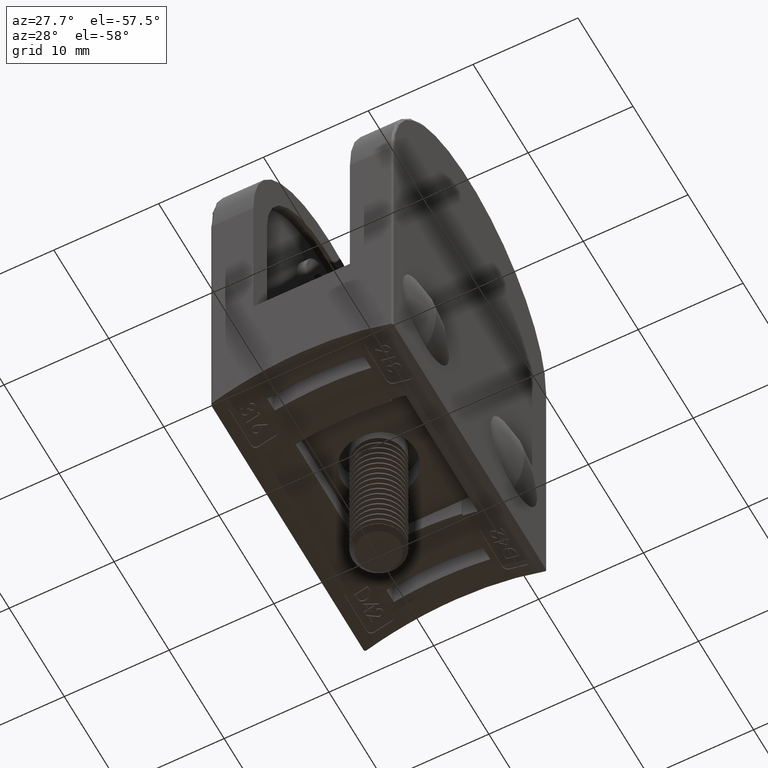
[diagram: clean part render]
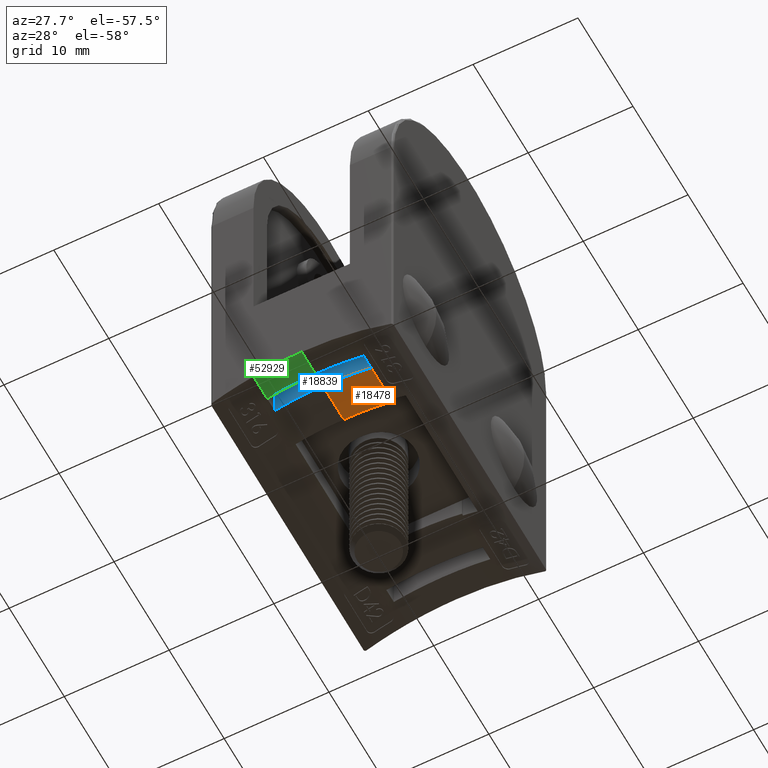
[diagram: same view with three faces highlighted in distinct colors, each labeled with its STEP entity id]
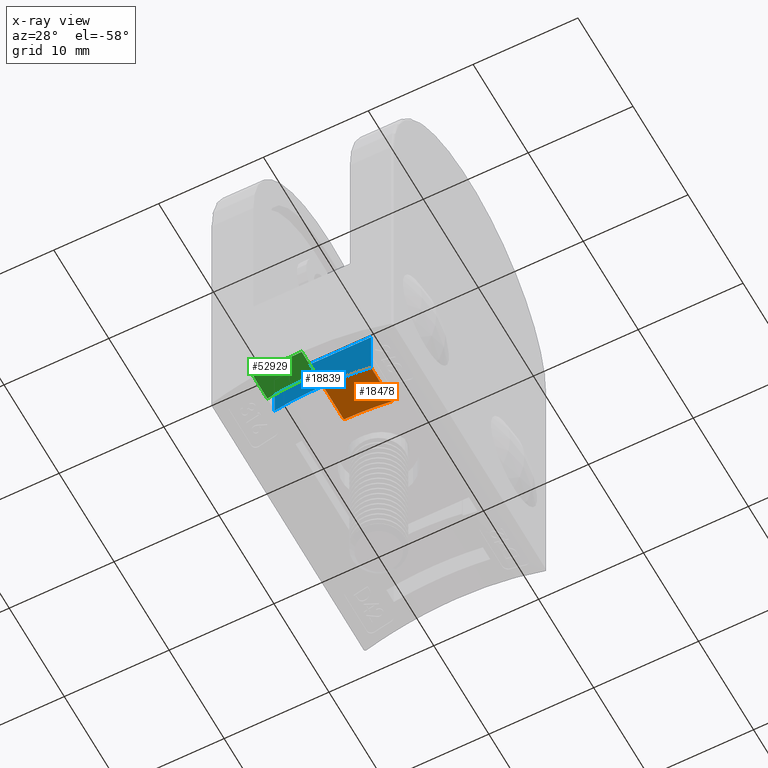
[diagram: x-ray of the same camera — body ghosted, the three highlighted faces saturated]
A machine part, auxiliary view with three faces highlighted in distinct colors.
The next image is the same camera in x-ray (body ghosted, the three faces saturated) — at least one of them is partly hidden behind the body in this view.
Their STEP definitions:

[orange] entity #18478 — the highlighted cylindrical surface (partial cylindrical patch) has radius 21.2 mm, axis along (0, 1, 0).
#1045 = ORIENTED_EDGE ( 'NONE', *, *, #5738, .T. ) ;
#1162 = CARTESIAN_POINT ( 'NONE',  ( 13.29999999999999900, -10.14999999999999900, -0.5050730854153535600 ) ) ;
#1467 = AXIS2_PLACEMENT_3D ( 'NONE', #18885, #40877, #49620 ) ;
#2028 = DIRECTION ( 'NONE',  ( 0.0000000000000000000, 0.0000000000000000000, 1.000000000000000000 ) ) ;
#2416 = DIRECTION ( 'NONE',  ( -0.0000000000000000000, 1.000000000000000000, -0.0000000000000000000 ) ) ;
#5738 = EDGE_CURVE ( 'NONE', #6432, #45648, #36633, .T. ) ;
#6432 = VERTEX_POINT ( 'NONE', #36314 ) ;
#7521 = DIRECTION ( 'NONE',  ( 0.0000000000000000000, -1.000000000000000000, 0.0000000000000000000 ) ) ;
#10006 = VECTOR ( 'NONE', #33188, 1000.000000000000000 ) ;
#15855 = VECTOR ( 'NONE', #48119, 1000.000000000000000 ) ;
#18478 = ADVANCED_FACE ( 'NONE', ( #28716 ), #42344, .F. ) ;
#18885 = CARTESIAN_POINT ( 'NONE',  ( 8.699999999999995700, -10.14999999999999900, -21.19999999999999900 ) ) ;
#19368 = ORIENTED_EDGE ( 'NONE', *, *, #43441, .F. ) ;
#21046 = CIRCLE ( 'NONE', #21764, 21.19999999999999900 ) ;
#21764 = AXIS2_PLACEMENT_3D ( 'NONE', #55449, #7521, #29312 ) ;
#22154 = CARTESIAN_POINT ( 'NONE',  ( 8.699999999999995700, -13.99999999999999500, 0.0000000000000000000 ) ) ;
#22264 = VERTEX_POINT ( 'NONE', #48456 ) ;
#24771 = CARTESIAN_POINT ( 'NONE',  ( 13.29999999999999900, -13.99999999999999500, -0.5050730854153535600 ) ) ;
#25165 = AXIS2_PLACEMENT_3D ( 'NONE', #54730, #2416, #2028 ) ;
#27083 = EDGE_LOOP ( 'NONE', ( #33934, #43544, #19368, #1045 ) ) ;
#28716 = FACE_OUTER_BOUND ( 'NONE', #27083, .T. ) ;
#29312 = DIRECTION ( 'NONE',  ( 0.0000000000000000000, 0.0000000000000000000, -1.000000000000000000 ) ) ;
#31533 = CARTESIAN_POINT ( 'NONE',  ( 8.699999999999995700, -6.350000000000006800, 0.0000000000000000000 ) ) ;
#33188 = DIRECTION ( 'NONE',  ( 0.0000000000000000000, -1.000000000000000000, 0.0000000000000000000 ) ) ;
#33934 = ORIENTED_EDGE ( 'NONE', *, *, #50050, .F. ) ;
#35206 = CIRCLE ( 'NONE', #1467, 21.19999999999999900 ) ;
#36314 = CARTESIAN_POINT ( 'NONE',  ( 13.29999999999999900, -6.350000000000006800, -0.5050730854153535600 ) ) ;
#36633 = LINE ( 'NONE', #24771, #10006 ) ;
#40877 = DIRECTION ( 'NONE',  ( -0.0000000000000000000, 1.000000000000000000, 0.0000000000000000000 ) ) ;
#42344 = CYLINDRICAL_SURFACE ( 'NONE', #25165, 21.19999999999999900 ) ;
#43441 = EDGE_CURVE ( 'NONE', #6432, #47555, #21046, .T. ) ;
#43544 = ORIENTED_EDGE ( 'NONE', *, *, #53825, .T. ) ;
#44586 = LINE ( 'NONE', #22154, #15855 ) ;
#45648 = VERTEX_POINT ( 'NONE', #1162 ) ;
#47555 = VERTEX_POINT ( 'NONE', #31533 ) ;
#48119 = DIRECTION ( 'NONE',  ( -0.0000000000000000000, 1.000000000000000000, -0.0000000000000000000 ) ) ;
#48456 = CARTESIAN_POINT ( 'NONE',  ( 8.699999999999995700, -10.14999999999999900, 0.0000000000000000000 ) ) ;
#49620 = DIRECTION ( 'NONE',  ( 0.0000000000000000000, 0.0000000000000000000, 1.000000000000000000 ) ) ;
#50050 = EDGE_CURVE ( 'NONE', #22264, #45648, #35206, .T. ) ;
#53825 = EDGE_CURVE ( 'NONE', #22264, #47555, #44586, .T. ) ;
#54730 = CARTESIAN_POINT ( 'NONE',  ( 8.699999999999995700, -13.99999999999999500, -21.19999999999999900 ) ) ;
#55449 = CARTESIAN_POINT ( 'NONE',  ( 8.699999999999995700, -6.350000000000006800, -21.19999999999999900 ) ) ;

[blue] entity #18839 — the highlighted planar face has unit normal (0, 1, 0).
#461 = DIRECTION ( 'NONE',  ( 0.0000000000000000000, 0.0000000000000000000, -1.000000000000000000 ) ) ;
#1031 = LINE ( 'NONE', #22089, #35147 ) ;
#1162 = CARTESIAN_POINT ( 'NONE',  ( 13.29999999999999900, -10.14999999999999900, -0.5050730854153535600 ) ) ;
#1467 = AXIS2_PLACEMENT_3D ( 'NONE', #18885, #40877, #49620 ) ;
#1869 = CARTESIAN_POINT ( 'NONE',  ( 13.29999999999999900, -10.14999999999999900, 4.299999999999993600 ) ) ;
#3292 = ORIENTED_EDGE ( 'NONE', *, *, #50472, .T. ) ;
#5890 = DIRECTION ( 'NONE',  ( 0.0000000000000000000, 0.0000000000000000000, -1.000000000000000000 ) ) ;
#6375 = DIRECTION ( 'NONE',  ( 0.0000000000000000000, -0.0000000000000000000, 1.000000000000000000 ) ) ;
#6570 = PLANE ( 'NONE',  #14522 ) ;
#7911 = VERTEX_POINT ( 'NONE', #39961 ) ;
#8857 = CARTESIAN_POINT ( 'NONE',  ( 4.099999999999999600, -10.14999999999999900, 4.299999999999993600 ) ) ;
#10570 = DIRECTION ( 'NONE',  ( -0.0000000000000000000, 1.000000000000000000, 0.0000000000000000000 ) ) ;
#12679 = CARTESIAN_POINT ( 'NONE',  ( 4.099999999999999600, -10.14999999999999900, -0.5050730854153535600 ) ) ;
#14522 = AXIS2_PLACEMENT_3D ( 'NONE', #28160, #10570, #6375 ) ;
#16997 = EDGE_CURVE ( 'NONE', #39955, #55249, #30186, .T. ) ;
#17099 = ORIENTED_EDGE ( 'NONE', *, *, #48154, .T. ) ;
#18839 = ADVANCED_FACE ( 'NONE', ( #56692 ), #6570, .F. ) ;
#18885 = CARTESIAN_POINT ( 'NONE',  ( 8.699999999999995700, -10.14999999999999900, -21.19999999999999900 ) ) ;
#22089 = CARTESIAN_POINT ( 'NONE',  ( 13.29999999999999900, -10.14999999999999900, 4.299999999999993600 ) ) ;
#22264 = VERTEX_POINT ( 'NONE', #48456 ) ;
#24377 = CARTESIAN_POINT ( 'NONE',  ( 8.699999999999995700, -10.14999999999999900, -21.19999999999999900 ) ) ;
#25980 = AXIS2_PLACEMENT_3D ( 'NONE', #24377, #33734, #32973 ) ;
#27687 = ORIENTED_EDGE ( 'NONE', *, *, #50050, .T. ) ;
#28160 = CARTESIAN_POINT ( 'NONE',  ( 13.29999999999999900, -10.14999999999999900, 4.299999999999993600 ) ) ;
#30186 = LINE ( 'NONE', #8857, #47237 ) ;
#32883 = ORIENTED_EDGE ( 'NONE', *, *, #38528, .F. ) ;
#32973 = DIRECTION ( 'NONE',  ( 0.0000000000000000000, 0.0000000000000000000, 1.000000000000000000 ) ) ;
#33734 = DIRECTION ( 'NONE',  ( -0.0000000000000000000, 1.000000000000000000, 0.0000000000000000000 ) ) ;
#35147 = VECTOR ( 'NONE', #40050, 1000.000000000000000 ) ;
#35206 = CIRCLE ( 'NONE', #1467, 21.19999999999999900 ) ;
#35342 = ORIENTED_EDGE ( 'NONE', *, *, #16997, .T. ) ;
#38528 = EDGE_CURVE ( 'NONE', #7911, #45648, #54149, .T. ) ;
#39625 = EDGE_LOOP ( 'NONE', ( #35342, #17099, #27687, #32883, #3292 ) ) ;
#39955 = VERTEX_POINT ( 'NONE', #46415 ) ;
#39961 = CARTESIAN_POINT ( 'NONE',  ( 13.29999999999999900, -10.14999999999999900, 4.299999999999993600 ) ) ;
#40050 = DIRECTION ( 'NONE',  ( -1.000000000000000000, -0.0000000000000000000, -0.0000000000000000000 ) ) ;
#40877 = DIRECTION ( 'NONE',  ( -0.0000000000000000000, 1.000000000000000000, 0.0000000000000000000 ) ) ;
#42189 = CIRCLE ( 'NONE', #25980, 21.19999999999999900 ) ;
#42529 = VECTOR ( 'NONE', #5890, 1000.000000000000000 ) ;
#45648 = VERTEX_POINT ( 'NONE', #1162 ) ;
#46415 = CARTESIAN_POINT ( 'NONE',  ( 4.099999999999999600, -10.14999999999999900, 4.299999999999993600 ) ) ;
#47237 = VECTOR ( 'NONE', #461, 1000.000000000000000 ) ;
#48154 = EDGE_CURVE ( 'NONE', #55249, #22264, #42189, .T. ) ;
#48456 = CARTESIAN_POINT ( 'NONE',  ( 8.699999999999995700, -10.14999999999999900, 0.0000000000000000000 ) ) ;
#49620 = DIRECTION ( 'NONE',  ( 0.0000000000000000000, 0.0000000000000000000, 1.000000000000000000 ) ) ;
#50050 = EDGE_CURVE ( 'NONE', #22264, #45648, #35206, .T. ) ;
#50472 = EDGE_CURVE ( 'NONE', #7911, #39955, #1031, .T. ) ;
#54149 = LINE ( 'NONE', #1869, #42529 ) ;
#55249 = VERTEX_POINT ( 'NONE', #12679 ) ;
#56692 = FACE_OUTER_BOUND ( 'NONE', #39625, .T. ) ;

[green] entity #52929 — the highlighted cylindrical surface (partial cylindrical patch) has radius 21.2 mm, axis along (0, -1, -0).
#3326 = ORIENTED_EDGE ( 'NONE', *, *, #10512, .F. ) ;
#4928 = CIRCLE ( 'NONE', #11007, 21.19999999999999600 ) ;
#5879 = CARTESIAN_POINT ( 'NONE',  ( 8.699999999999997500, 13.99999999999999300, -3.469446951953614200E-015 ) ) ;
#5981 = ORIENTED_EDGE ( 'NONE', *, *, #35829, .F. ) ;
#9687 = CARTESIAN_POINT ( 'NONE',  ( 8.699999999999997500, -13.99999999999999800, -21.19999999999999900 ) ) ;
#10242 = DIRECTION ( 'NONE',  ( 0.0000000000000000000, 0.0000000000000000000, 1.000000000000000000 ) ) ;
#10512 = EDGE_CURVE ( 'NONE', #55240, #31463, #4928, .T. ) ;
#11007 = AXIS2_PLACEMENT_3D ( 'NONE', #41437, #45808, #20033 ) ;
#15403 = EDGE_CURVE ( 'NONE', #55240, #42628, #48732, .T. ) ;
#16157 = AXIS2_PLACEMENT_3D ( 'NONE', #9687, #40256, #10242 ) ;
#20033 = DIRECTION ( 'NONE',  ( 0.0000000000000000000, 0.0000000000000000000, 1.000000000000000000 ) ) ;
#20233 = DIRECTION ( 'NONE',  ( 0.0000000000000000000, -1.000000000000000000, 0.0000000000000000000 ) ) ;
#20813 = DIRECTION ( 'NONE',  ( 0.0000000000000000000, -1.000000000000000000, -6.672013369141565500E-017 ) ) ;
#22076 = EDGE_CURVE ( 'NONE', #40509, #31463, #34636, .T. ) ;
#22520 = CARTESIAN_POINT ( 'NONE',  ( 8.699999999999997500, -13.99999999999999800, -3.469446951953614200E-015 ) ) ;
#22781 = VECTOR ( 'NONE', #22890, 1000.000000000000000 ) ;
#22890 = DIRECTION ( 'NONE',  ( -0.0000000000000000000, 1.000000000000000000, -0.0000000000000000000 ) ) ;
#24883 = CARTESIAN_POINT ( 'NONE',  ( 13.29999999999999900, 11.49999999999999600, -0.5050730854153605600 ) ) ;
#26394 = CIRCLE ( 'NONE', #47946, 21.19999999999999200 ) ;
#31463 = VERTEX_POINT ( 'NONE', #24883 ) ;
#31602 = CYLINDRICAL_SURFACE ( 'NONE', #16157, 21.19999999999999600 ) ;
#33924 = ORIENTED_EDGE ( 'NONE', *, *, #22076, .T. ) ;
#34636 = LINE ( 'NONE', #37035, #42834 ) ;
#35829 = EDGE_CURVE ( 'NONE', #40509, #42628, #26394, .T. ) ;
#36530 = EDGE_LOOP ( 'NONE', ( #3326, #44820, #5981, #33924 ) ) ;
#37035 = CARTESIAN_POINT ( 'NONE',  ( 13.29999999999999900, -13.99999999999999800, -0.5050730854153605600 ) ) ;
#38490 = CARTESIAN_POINT ( 'NONE',  ( 8.699999999999997500, 11.49999999999999600, -3.469446951953614200E-015 ) ) ;
#40256 = DIRECTION ( 'NONE',  ( -0.0000000000000000000, 1.000000000000000000, -0.0000000000000000000 ) ) ;
#40509 = VERTEX_POINT ( 'NONE', #44045 ) ;
#41437 = CARTESIAN_POINT ( 'NONE',  ( 8.699999999999997500, 11.49999999999999600, -21.19999999999999900 ) ) ;
#42596 = CARTESIAN_POINT ( 'NONE',  ( 8.699999999999997500, 13.99999999999999500, -21.19999999999999900 ) ) ;
#42628 = VERTEX_POINT ( 'NONE', #5879 ) ;
#42834 = VECTOR ( 'NONE', #20233, 1000.000000000000000 ) ;
#44045 = CARTESIAN_POINT ( 'NONE',  ( 13.29999999999999700, 13.99999999999999500, -0.5050730854153605600 ) ) ;
#44820 = ORIENTED_EDGE ( 'NONE', *, *, #15403, .T. ) ;
#45808 = DIRECTION ( 'NONE',  ( -0.0000000000000000000, 1.000000000000000000, 0.0000000000000000000 ) ) ;
#47946 = AXIS2_PLACEMENT_3D ( 'NONE', #42596, #20813, #51358 ) ;
#48732 = LINE ( 'NONE', #22520, #22781 ) ;
#51358 = DIRECTION ( 'NONE',  ( 0.0000000000000000000, 8.182657905550979500E-017, -1.000000000000000000 ) ) ;
#52929 = ADVANCED_FACE ( 'NONE', ( #56190 ), #31602, .F. ) ;
#55240 = VERTEX_POINT ( 'NONE', #38490 ) ;
#56190 = FACE_OUTER_BOUND ( 'NONE', #36530, .T. ) ;